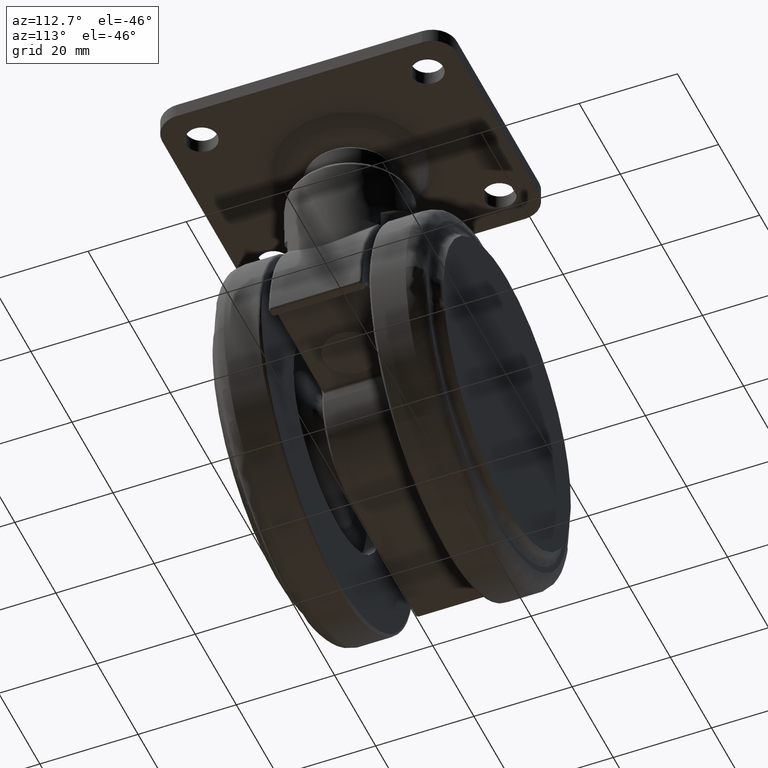
[diagram: clean part render]
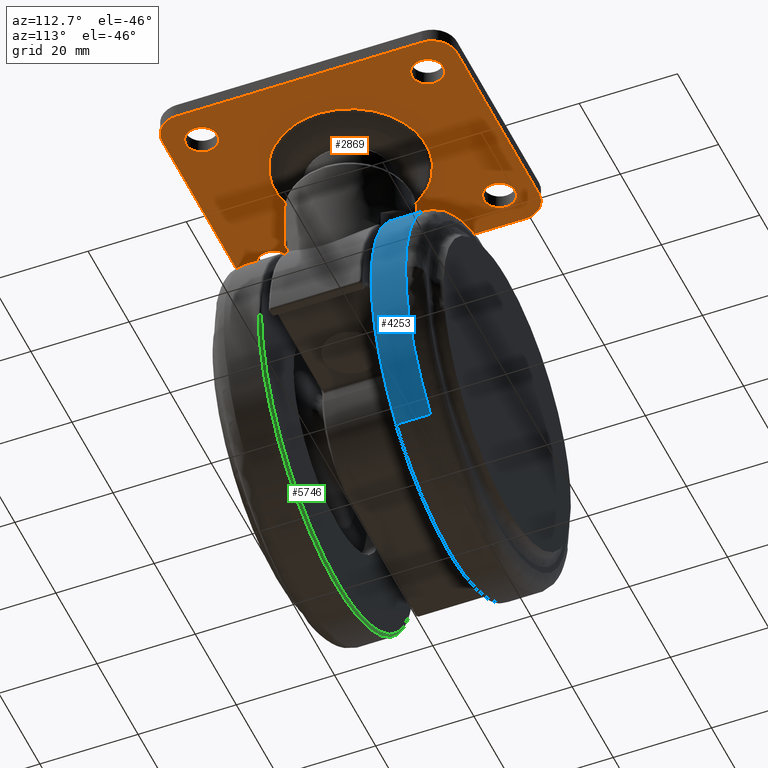
[diagram: same view with three faces highlighted in distinct colors, each labeled with its STEP entity id]
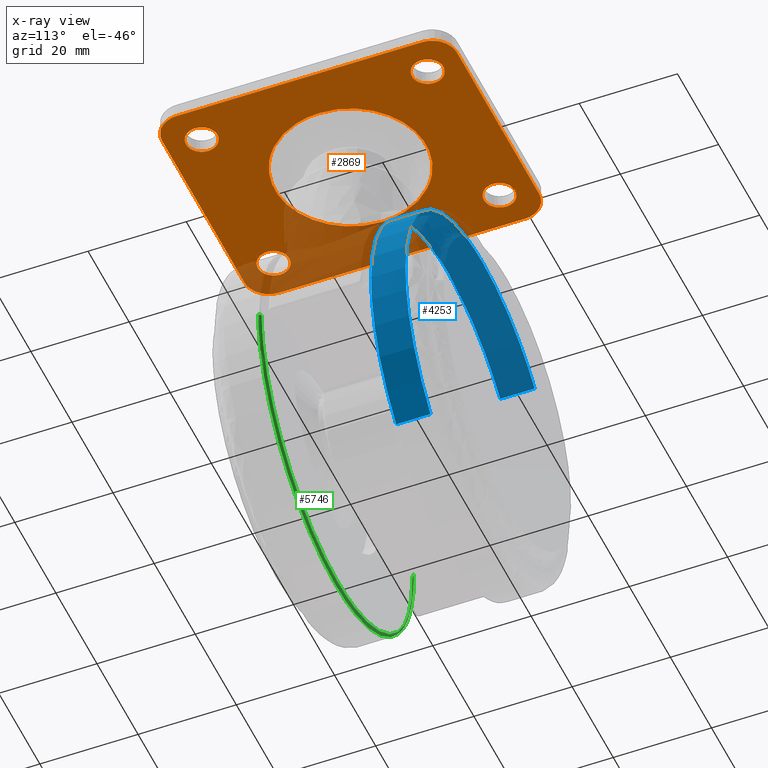
[diagram: x-ray of the same camera — body ghosted, the three highlighted faces saturated]
A machine part, auxiliary view with three faces highlighted in distinct colors.
The next image is the same camera in x-ray (body ghosted, the three faces saturated) — at least one of them is partly hidden behind the body in this view.
Their STEP definitions:

[orange] entity #2869 — the highlighted face is a freeform B-spline surface patch.
#1590=CARTESIAN_POINT('',(14.300000000000001,23.0,11.000000000000121));
#1591=VERTEX_POINT('',#1590);
#1592=CARTESIAN_POINT('',(17.248930893584848,19.809864532060761,11.000000000000121));
#1593=VERTEX_POINT('',#1592);
#1594=CARTESIAN_POINT('',(14.300000000000001,23.0,11.000000000000121));
#1595=CARTESIAN_POINT('',(14.300000000000002,20.041950426773770,11.000000000000121));
#1596=CARTESIAN_POINT('',(17.248930893584848,19.809864532060761,11.000000000000117));
#1604=(BOUNDED_CURVE()B_SPLINE_CURVE(2,(#1594,#1595,#1596),.UNSPECIFIED.,.F.,.U.)B_SPLINE_CURVE_WITH_KNOTS((3,3),(0.0,0.236331300628143),.UNSPECIFIED.)CURVE()GEOMETRIC_REPRESENTATION_ITEM()RATIONAL_B_SPLINE_CURVE((1.0,0.723120658610614,0.969723356162166))REPRESENTATION_ITEM(''));
#1605=EDGE_CURVE('',#1591,#1593,#1604,.T.);
#1607=CARTESIAN_POINT('',(17.751069106415152,26.190135467939239,11.000000000000121));
#1608=VERTEX_POINT('',#1607);
#1609=CARTESIAN_POINT('',(17.751069106415137,26.190135467939236,11.000000000000121));
#1610=CARTESIAN_POINT('',(17.625728342467767,26.200000000000003,11.000000000000117));
#1611=CARTESIAN_POINT('',(17.500000000000000,26.199999999999999,11.000000000000121));
#1612=CARTESIAN_POINT('',(14.299999999999999,26.200000000000006,11.000000000000119));
#1613=CARTESIAN_POINT('',(14.300000000000001,23.0,11.000000000000121));
#1621=(BOUNDED_CURVE()B_SPLINE_CURVE(2,(#1609,#1610,#1611,#1612,#1613),.UNSPECIFIED.,.F.,.U.)B_SPLINE_CURVE_WITH_KNOTS((3,2,3),(0.736331300628143,0.750000000000000,1.0),.UNSPECIFIED.)CURVE()GEOMETRIC_REPRESENTATION_ITEM()RATIONAL_B_SPLINE_CURVE((0.969723356162167,0.983986122575934,1.0,0.707106781186548,1.0))REPRESENTATION_ITEM(''));
#1622=EDGE_CURVE('',#1608,#1591,#1621,.T.);
#1689=CARTESIAN_POINT('',(20.699999999999999,23.0,11.000000000000121));
#1690=VERTEX_POINT('',#1689);
#1691=CARTESIAN_POINT('',(17.248930893584852,19.809864532060764,11.000000000000119));
#1692=CARTESIAN_POINT('',(17.374271657532233,19.799999999999994,11.000000000000121));
#1693=CARTESIAN_POINT('',(17.500000000000000,19.800000000000001,11.000000000000121));
#1694=CARTESIAN_POINT('',(20.700000000000006,19.799999999999997,11.000000000000119));
#1695=CARTESIAN_POINT('',(20.699999999999999,23.0,11.000000000000121));
#1703=(BOUNDED_CURVE()B_SPLINE_CURVE(2,(#1691,#1692,#1693,#1694,#1695),.UNSPECIFIED.,.F.,.U.)B_SPLINE_CURVE_WITH_KNOTS((3,2,3),(0.236331300628143,0.250000000000000,0.500000000000000),.UNSPECIFIED.)CURVE()GEOMETRIC_REPRESENTATION_ITEM()RATIONAL_B_SPLINE_CURVE((0.969723356162166,0.983986122575934,1.0,0.707106781186548,1.0))REPRESENTATION_ITEM(''));
#1704=EDGE_CURVE('',#1593,#1690,#1703,.T.);
#1738=CARTESIAN_POINT('',(20.699999999999999,23.0,11.000000000000121));
#1739=CARTESIAN_POINT('',(20.700000000000003,25.958049573226234,11.000000000000119));
#1740=CARTESIAN_POINT('',(17.751069106415148,26.190135467939243,11.000000000000117));
#1748=(BOUNDED_CURVE()B_SPLINE_CURVE(2,(#1738,#1739,#1740),.UNSPECIFIED.,.F.,.U.)B_SPLINE_CURVE_WITH_KNOTS((3,3),(0.500000000000000,0.736331300628143),.UNSPECIFIED.)CURVE()GEOMETRIC_REPRESENTATION_ITEM()RATIONAL_B_SPLINE_CURVE((1.0,0.723120658610614,0.969723356162166))REPRESENTATION_ITEM(''));
#1749=EDGE_CURVE('',#1690,#1608,#1748,.T.);
#1772=CARTESIAN_POINT('',(-20.699999999999999,23.0,11.000000000000121));
#1773=VERTEX_POINT('',#1772);
#1774=CARTESIAN_POINT('',(-17.751069106415152,19.809864532060761,11.000000000000121));
#1775=VERTEX_POINT('',#1774);
#1776=CARTESIAN_POINT('',(-20.699999999999999,23.0,11.000000000000121));
#1777=CARTESIAN_POINT('',(-20.700000000000006,20.041950426773770,11.000000000000119));
#1778=CARTESIAN_POINT('',(-17.751069106415144,19.809864532060754,11.000000000000114));
#1786=(BOUNDED_CURVE()B_SPLINE_CURVE(2,(#1776,#1777,#1778),.UNSPECIFIED.,.F.,.U.)B_SPLINE_CURVE_WITH_KNOTS((3,3),(0.0,0.236331300628143),.UNSPECIFIED.)CURVE()GEOMETRIC_REPRESENTATION_ITEM()RATIONAL_B_SPLINE_CURVE((1.0,0.723120658610614,0.969723356162166))REPRESENTATION_ITEM(''));
#1787=EDGE_CURVE('',#1773,#1775,#1786,.T.);
#1789=CARTESIAN_POINT('',(-17.248930893584848,26.190135467939239,11.000000000000121));
#1790=VERTEX_POINT('',#1789);
#1791=CARTESIAN_POINT('',(-17.248930893584848,26.190135467939243,11.000000000000117));
#1792=CARTESIAN_POINT('',(-17.374271657532233,26.200000000000010,11.000000000000121));
#1793=CARTESIAN_POINT('',(-17.500000000000000,26.199999999999999,11.000000000000121));
#1794=CARTESIAN_POINT('',(-20.700000000000006,26.200000000000006,11.000000000000119));
#1795=CARTESIAN_POINT('',(-20.699999999999999,23.0,11.000000000000121));
#1803=(BOUNDED_CURVE()B_SPLINE_CURVE(2,(#1791,#1792,#1793,#1794,#1795),.UNSPECIFIED.,.F.,.U.)B_SPLINE_CURVE_WITH_KNOTS((3,2,3),(0.736331300628143,0.750000000000000,1.0),.UNSPECIFIED.)CURVE()GEOMETRIC_REPRESENTATION_ITEM()RATIONAL_B_SPLINE_CURVE((0.969723356162166,0.983986122575934,1.0,0.707106781186548,1.0))REPRESENTATION_ITEM(''));
#1804=EDGE_CURVE('',#1790,#1773,#1803,.T.);
#1871=CARTESIAN_POINT('',(-14.300000000000001,23.0,11.000000000000121));
#1872=VERTEX_POINT('',#1871);
#1873=CARTESIAN_POINT('',(-17.751069106415144,19.809864532060754,11.000000000000114));
#1874=CARTESIAN_POINT('',(-17.625728342467756,19.800000000000001,11.000000000000119));
#1875=CARTESIAN_POINT('',(-17.500000000000000,19.800000000000001,11.000000000000121));
#1876=CARTESIAN_POINT('',(-14.299999999999999,19.799999999999997,11.000000000000119));
#1877=CARTESIAN_POINT('',(-14.300000000000001,23.0,11.000000000000121));
#1885=(BOUNDED_CURVE()B_SPLINE_CURVE(2,(#1873,#1874,#1875,#1876,#1877),.UNSPECIFIED.,.F.,.U.)B_SPLINE_CURVE_WITH_KNOTS((3,2,3),(0.236331300628143,0.250000000000000,0.500000000000000),.UNSPECIFIED.)CURVE()GEOMETRIC_REPRESENTATION_ITEM()RATIONAL_B_SPLINE_CURVE((0.969723356162166,0.983986122575934,1.0,0.707106781186548,1.0))REPRESENTATION_ITEM(''));
#1886=EDGE_CURVE('',#1775,#1872,#1885,.T.);
#1920=CARTESIAN_POINT('',(-14.300000000000001,23.0,11.000000000000121));
#1921=CARTESIAN_POINT('',(-14.300000000000006,25.958049573226244,11.000000000000121));
#1922=CARTESIAN_POINT('',(-17.248930893584848,26.190135467939236,11.000000000000121));
#1930=(BOUNDED_CURVE()B_SPLINE_CURVE(2,(#1920,#1921,#1922),.UNSPECIFIED.,.F.,.U.)B_SPLINE_CURVE_WITH_KNOTS((3,3),(0.500000000000000,0.736331300628143),.UNSPECIFIED.)CURVE()GEOMETRIC_REPRESENTATION_ITEM()RATIONAL_B_SPLINE_CURVE((1.0,0.723120658610614,0.969723356162167))REPRESENTATION_ITEM(''));
#1931=EDGE_CURVE('',#1872,#1790,#1930,.T.);
#1954=CARTESIAN_POINT('',(-20.699999999999999,-23.0,11.000000000000121));
#1955=VERTEX_POINT('',#1954);
#1956=CARTESIAN_POINT('',(-17.751069106415152,-26.190135467939239,11.000000000000121));
#1957=VERTEX_POINT('',#1956);
#1958=CARTESIAN_POINT('',(-20.699999999999999,-23.0,11.000000000000121));
#1959=CARTESIAN_POINT('',(-20.699999999999999,-25.958049573226234,11.000000000000121));
#1960=CARTESIAN_POINT('',(-17.751069106415152,-26.190135467939246,11.000000000000121));
#1968=(BOUNDED_CURVE()B_SPLINE_CURVE(2,(#1958,#1959,#1960),.UNSPECIFIED.,.F.,.U.)B_SPLINE_CURVE_WITH_KNOTS((3,3),(0.0,0.236331300628143),.UNSPECIFIED.)CURVE()GEOMETRIC_REPRESENTATION_ITEM()RATIONAL_B_SPLINE_CURVE((1.0,0.723120658610614,0.969723356162167))REPRESENTATION_ITEM(''));
#1969=EDGE_CURVE('',#1955,#1957,#1968,.T.);
#1971=CARTESIAN_POINT('',(-17.248930893584848,-19.809864532060761,11.000000000000121));
#1972=VERTEX_POINT('',#1971);
#1973=CARTESIAN_POINT('',(-17.248930893584856,-19.809864532060754,11.000000000000114));
#1974=CARTESIAN_POINT('',(-17.374271657532240,-19.799999999999990,11.000000000000119));
#1975=CARTESIAN_POINT('',(-17.500000000000000,-19.800000000000001,11.000000000000121));
#1976=CARTESIAN_POINT('',(-20.700000000000006,-19.799999999999997,11.000000000000119));
#1977=CARTESIAN_POINT('',(-20.699999999999999,-23.0,11.000000000000121));
#1985=(BOUNDED_CURVE()B_SPLINE_CURVE(2,(#1973,#1974,#1975,#1976,#1977),.UNSPECIFIED.,.F.,.U.)B_SPLINE_CURVE_WITH_KNOTS((3,2,3),(0.736331300628143,0.750000000000000,1.0),.UNSPECIFIED.)CURVE()GEOMETRIC_REPRESENTATION_ITEM()RATIONAL_B_SPLINE_CURVE((0.969723356162166,0.983986122575934,1.0,0.707106781186548,1.0))REPRESENTATION_ITEM(''));
#1986=EDGE_CURVE('',#1972,#1955,#1985,.T.);
#2053=CARTESIAN_POINT('',(-14.300000000000001,-23.0,11.000000000000121));
#2054=VERTEX_POINT('',#2053);
#2055=CARTESIAN_POINT('',(-17.751069106415148,-26.190135467939246,11.000000000000117));
#2056=CARTESIAN_POINT('',(-17.625728342467760,-26.200000000000006,11.000000000000121));
#2057=CARTESIAN_POINT('',(-17.500000000000000,-26.199999999999999,11.000000000000121));
#2058=CARTESIAN_POINT('',(-14.299999999999999,-26.200000000000006,11.000000000000119));
#2059=CARTESIAN_POINT('',(-14.300000000000001,-23.0,11.000000000000121));
#2067=(BOUNDED_CURVE()B_SPLINE_CURVE(2,(#2055,#2056,#2057,#2058,#2059),.UNSPECIFIED.,.F.,.U.)B_SPLINE_CURVE_WITH_KNOTS((3,2,3),(0.236331300628143,0.250000000000000,0.500000000000000),.UNSPECIFIED.)CURVE()GEOMETRIC_REPRESENTATION_ITEM()RATIONAL_B_SPLINE_CURVE((0.969723356162166,0.983986122575934,1.0,0.707106781186548,1.0))REPRESENTATION_ITEM(''));
#2068=EDGE_CURVE('',#1957,#2054,#2067,.T.);
#2102=CARTESIAN_POINT('',(-14.300000000000001,-23.0,11.000000000000121));
#2103=CARTESIAN_POINT('',(-14.300000000000006,-20.041950426773759,11.000000000000121));
#2104=CARTESIAN_POINT('',(-17.248930893584848,-19.809864532060761,11.000000000000121));
#2112=(BOUNDED_CURVE()B_SPLINE_CURVE(2,(#2102,#2103,#2104),.UNSPECIFIED.,.F.,.U.)B_SPLINE_CURVE_WITH_KNOTS((3,3),(0.500000000000000,0.736331300628143),.UNSPECIFIED.)CURVE()GEOMETRIC_REPRESENTATION_ITEM()RATIONAL_B_SPLINE_CURVE((1.0,0.723120658610614,0.969723356162167))REPRESENTATION_ITEM(''));
#2113=EDGE_CURVE('',#2054,#1972,#2112,.T.);
#2136=CARTESIAN_POINT('',(14.300000000000001,-23.0,11.000000000000121));
#2137=VERTEX_POINT('',#2136);
#2138=CARTESIAN_POINT('',(17.248930893584848,-26.190135467939239,11.000000000000121));
#2139=VERTEX_POINT('',#2138);
#2140=CARTESIAN_POINT('',(14.300000000000001,-23.0,11.000000000000121));
#2141=CARTESIAN_POINT('',(14.300000000000002,-25.958049573226237,11.000000000000121));
#2142=CARTESIAN_POINT('',(17.248930893584848,-26.190135467939246,11.000000000000117));
#2150=(BOUNDED_CURVE()B_SPLINE_CURVE(2,(#2140,#2141,#2142),.UNSPECIFIED.,.F.,.U.)B_SPLINE_CURVE_WITH_KNOTS((3,3),(0.0,0.236331300628143),.UNSPECIFIED.)CURVE()GEOMETRIC_REPRESENTATION_ITEM()RATIONAL_B_SPLINE_CURVE((1.0,0.723120658610614,0.969723356162166))REPRESENTATION_ITEM(''));
#2151=EDGE_CURVE('',#2137,#2139,#2150,.T.);
#2153=CARTESIAN_POINT('',(17.751069106415152,-19.809864532060761,11.000000000000121));
#2154=VERTEX_POINT('',#2153);
#2155=CARTESIAN_POINT('',(17.751069106415137,-19.809864532060761,11.000000000000121));
#2156=CARTESIAN_POINT('',(17.625728342467767,-19.799999999999997,11.000000000000117));
#2157=CARTESIAN_POINT('',(17.500000000000000,-19.800000000000001,11.000000000000121));
#2158=CARTESIAN_POINT('',(14.299999999999999,-19.799999999999997,11.000000000000119));
#2159=CARTESIAN_POINT('',(14.300000000000001,-23.0,11.000000000000121));
#2167=(BOUNDED_CURVE()B_SPLINE_CURVE(2,(#2155,#2156,#2157,#2158,#2159),.UNSPECIFIED.,.F.,.U.)B_SPLINE_CURVE_WITH_KNOTS((3,2,3),(0.736331300628143,0.750000000000000,1.0),.UNSPECIFIED.)CURVE()GEOMETRIC_REPRESENTATION_ITEM()RATIONAL_B_SPLINE_CURVE((0.969723356162167,0.983986122575934,1.0,0.707106781186548,1.0))REPRESENTATION_ITEM(''));
#2168=EDGE_CURVE('',#2154,#2137,#2167,.T.);
#2235=CARTESIAN_POINT('',(20.699999999999999,-23.0,11.000000000000121));
#2236=VERTEX_POINT('',#2235);
#2237=CARTESIAN_POINT('',(17.248930893584852,-26.190135467939246,11.000000000000119));
#2238=CARTESIAN_POINT('',(17.374271657532233,-26.200000000000010,11.000000000000121));
#2239=CARTESIAN_POINT('',(17.500000000000000,-26.199999999999999,11.000000000000121));
#2240=CARTESIAN_POINT('',(20.700000000000006,-26.200000000000006,11.000000000000119));
#2241=CARTESIAN_POINT('',(20.699999999999999,-23.0,11.000000000000121));
#2249=(BOUNDED_CURVE()B_SPLINE_CURVE(2,(#2237,#2238,#2239,#2240,#2241),.UNSPECIFIED.,.F.,.U.)B_SPLINE_CURVE_WITH_KNOTS((3,2,3),(0.236331300628143,0.250000000000000,0.500000000000000),.UNSPECIFIED.)CURVE()GEOMETRIC_REPRESENTATION_ITEM()RATIONAL_B_SPLINE_CURVE((0.969723356162166,0.983986122575934,1.0,0.707106781186548,1.0))REPRESENTATION_ITEM(''));
#2250=EDGE_CURVE('',#2139,#2236,#2249,.T.);
#2284=CARTESIAN_POINT('',(20.699999999999999,-23.0,11.000000000000121));
#2285=CARTESIAN_POINT('',(20.700000000000003,-20.041950426773766,11.000000000000119));
#2286=CARTESIAN_POINT('',(17.751069106415148,-19.809864532060761,11.000000000000117));
#2294=(BOUNDED_CURVE()B_SPLINE_CURVE(2,(#2284,#2285,#2286),.UNSPECIFIED.,.F.,.U.)B_SPLINE_CURVE_WITH_KNOTS((3,3),(0.500000000000000,0.736331300628143),.UNSPECIFIED.)CURVE()GEOMETRIC_REPRESENTATION_ITEM()RATIONAL_B_SPLINE_CURVE((1.0,0.723120658610614,0.969723356162166))REPRESENTATION_ITEM(''));
#2295=EDGE_CURVE('',#2236,#2154,#2294,.T.);
#2610=CARTESIAN_POINT('',(10.536720338588690,-11.220467512307669,11.0));
#2611=VERTEX_POINT('',#2610);
#2625=CARTESIAN_POINT('',(-15.392250221572001,0.0,11.0));
#2626=VERTEX_POINT('',#2625);
#2627=CARTESIAN_POINT('',(-15.392250221572001,0.0,11.0));
#2628=CARTESIAN_POINT('',(-15.392250222510715,-15.392250220572379,11.0));
#2629=CARTESIAN_POINT('',(-3.107935E-009,-15.392250218262379,11.0));
#2630=CARTESIAN_POINT('',(6.094222977192210,-15.392250217347788,10.999999999999998));
#2631=CARTESIAN_POINT('',(10.536720338588683,-11.220467512307668,11.0));
#2639=(BOUNDED_CURVE()B_SPLINE_CURVE(2,(#2627,#2628,#2629,#2630,#2631),.UNSPECIFIED.,.F.,.U.)B_SPLINE_CURVE_WITH_KNOTS((3,2,3),(0.0,0.250000000000000,0.370259312843120),.UNSPECIFIED.)CURVE()GEOMETRIC_REPRESENTATION_ITEM()RATIONAL_B_SPLINE_CURVE((1.0,0.707106781186547,1.0,0.859107451076339,0.853764031098879))REPRESENTATION_ITEM(''));
#2640=EDGE_CURVE('',#2626,#2611,#2639,.T.);
#2642=CARTESIAN_POINT('',(-10.536720338588690,11.220467512307669,11.0));
#2643=VERTEX_POINT('',#2642);
#2644=CARTESIAN_POINT('',(-10.536720338588683,11.220467512307668,11.0));
#2645=CARTESIAN_POINT('',(-15.392250219402779,6.660821459689584,11.000000000000002));
#2646=CARTESIAN_POINT('',(-15.392250221572001,0.0,11.0));
#2654=(BOUNDED_CURVE()B_SPLINE_CURVE(2,(#2644,#2645,#2646),.UNSPECIFIED.,.F.,.U.)B_SPLINE_CURVE_WITH_KNOTS((3,3),(0.870259312843120,1.0),.UNSPECIFIED.)CURVE()GEOMETRIC_REPRESENTATION_ITEM()RATIONAL_B_SPLINE_CURVE((0.853764031098879,0.847999330110209,1.0))REPRESENTATION_ITEM(''));
#2655=EDGE_CURVE('',#2643,#2626,#2654,.T.);
#2708=CARTESIAN_POINT('',(15.392250221572001,0.0,11.0));
#2709=VERTEX_POINT('',#2708);
#2710=CARTESIAN_POINT('',(15.392250221572001,0.0,11.0));
#2711=CARTESIAN_POINT('',(15.392250222510715,15.392250220572379,11.0));
#2712=CARTESIAN_POINT('',(3.107935E-009,15.392250218262379,11.0));
#2713=CARTESIAN_POINT('',(-6.094222977192210,15.392250217347788,10.999999999999998));
#2714=CARTESIAN_POINT('',(-10.536720338588683,11.220467512307668,11.0));
#2722=(BOUNDED_CURVE()B_SPLINE_CURVE(2,(#2710,#2711,#2712,#2713,#2714),.UNSPECIFIED.,.F.,.U.)B_SPLINE_CURVE_WITH_KNOTS((3,2,3),(0.500000000000000,0.750000000000000,0.870259312843120),.UNSPECIFIED.)CURVE()GEOMETRIC_REPRESENTATION_ITEM()RATIONAL_B_SPLINE_CURVE((1.0,0.707106781186547,1.0,0.859107451076339,0.853764031098879))REPRESENTATION_ITEM(''));
#2723=EDGE_CURVE('',#2709,#2643,#2722,.T.);
#2725=CARTESIAN_POINT('',(10.536720338588683,-11.220467512307668,11.0));
#2726=CARTESIAN_POINT('',(15.392250219402779,-6.660821459689584,11.000000000000002));
#2727=CARTESIAN_POINT('',(15.392250221572001,0.0,11.0));
#2735=(BOUNDED_CURVE()B_SPLINE_CURVE(2,(#2725,#2726,#2727),.UNSPECIFIED.,.F.,.U.)B_SPLINE_CURVE_WITH_KNOTS((3,3),(0.370259312843120,0.500000000000000),.UNSPECIFIED.)CURVE()GEOMETRIC_REPRESENTATION_ITEM()RATIONAL_B_SPLINE_CURVE((0.853764031098879,0.847999330110209,1.0))REPRESENTATION_ITEM(''));
#2736=EDGE_CURVE('',#2611,#2709,#2735,.T.);
#2742=CARTESIAN_POINT('',(-27.497499903090301,32.996999883708362,11.0));
#2743=CARTESIAN_POINT('',(27.497501244194812,32.996999883708362,11.0));
#2744=CARTESIAN_POINT('',(-27.497499903090301,-32.997001493033771,11.0));
#2745=CARTESIAN_POINT('',(27.497501244194812,-32.997001493033771,11.0));
#2746=B_SPLINE_SURFACE_WITH_KNOTS('',1,1,((#2742,#2744),(#2743,#2745)),.UNSPECIFIED.,.F.,.F.,.U.,(2,2),(2,2),(0.0,54.995001147285109),(0.0,65.994001376742119),.UNSPECIFIED.);
#2747=CARTESIAN_POINT('',(19.999999999995602,30.0,11.000000000000121));
#2748=VERTEX_POINT('',#2747);
#2749=CARTESIAN_POINT('',(-20.000000000004551,30.0,11.000000000000121));
#2750=VERTEX_POINT('',#2749);
#2751=CARTESIAN_POINT('',(19.999999999995602,30.0,11.000000000000121));
#2752=CARTESIAN_POINT('',(-20.000000000004551,30.0,11.000000000000121));
#2753=QUASI_UNIFORM_CURVE('',1,(#2751,#2752),.UNSPECIFIED.,.F.,.U.);
#2754=EDGE_CURVE('',#2748,#2750,#2753,.T.);
#2755=ORIENTED_EDGE('',*,*,#2754,.F.);
#2756=CARTESIAN_POINT('',(25.0,25.0,11.000000000000121));
#2757=VERTEX_POINT('',#2756);
#2758=CARTESIAN_POINT('',(25.0,25.0,11.000000000000121));
#2759=CARTESIAN_POINT('',(25.000054297040268,25.347701902753769,11.000000000000110));
#2760=CARTESIAN_POINT('',(24.937852029380601,25.940810957086828,11.000000000000130));
#2761=CARTESIAN_POINT('',(24.652356190380580,26.925728310016069,11.000000000000110));
#2762=CARTESIAN_POINT('',(24.191081380207560,27.801577987489519,11.000000000000149));
#2763=CARTESIAN_POINT('',(23.578245178429931,28.520713269300419,11.000000000000011));
#2764=CARTESIAN_POINT('',(22.880057498252022,29.123085343981309,11.000000000000350));
#2765=CARTESIAN_POINT('',(22.061070607611551,29.600434981846359,10.999999999999829));
#2766=CARTESIAN_POINT('',(21.022626561508570,29.929305427629590,11.000000000000270));
#2767=CARTESIAN_POINT('',(20.347701171029680,30.000052832102771,11.000000000000030));
#2768=CARTESIAN_POINT('',(19.999999999995602,30.0,11.000000000000121));
#2769=B_SPLINE_CURVE_WITH_KNOTS('',3,(#2758,#2759,#2760,#2761,#2762,#2763,#2764,#2765,#2766,#2767,#2768),.UNSPECIFIED.,.F.,.U.,(4,1,1,1,1,1,1,1,4),(0.000000118015302,1.043102015149914,1.779429006807546,3.068001900550261,3.988339525617881,4.601946734339276,5.829162510191752,6.810932949346734,7.854030914389531),.UNSPECIFIED.);
#2770=EDGE_CURVE('',#2757,#2748,#2769,.T.);
#2771=ORIENTED_EDGE('',*,*,#2770,.F.);
#2772=CARTESIAN_POINT('',(25.0,-25.0,11.000000000000121));
#2773=VERTEX_POINT('',#2772);
#2774=CARTESIAN_POINT('',(25.0,-25.0,11.000000000000121));
#2775=CARTESIAN_POINT('',(25.0,25.0,11.000000000000121));
#2776=QUASI_UNIFORM_CURVE('',1,(#2774,#2775),.UNSPECIFIED.,.F.,.U.);
#2777=EDGE_CURVE('',#2773,#2757,#2776,.T.);
#2778=ORIENTED_EDGE('',*,*,#2777,.F.);
#2779=CARTESIAN_POINT('',(20.0,-30.0,11.000000000000121));
#2780=VERTEX_POINT('',#2779);
#2781=CARTESIAN_POINT('',(20.0,-30.0,11.000000000000121));
#2782=CARTESIAN_POINT('',(25.0,-30.000000000000004,11.000000000000119));
#2783=CARTESIAN_POINT('',(25.0,-25.0,11.000000000000121));
#2791=(BOUNDED_CURVE()B_SPLINE_CURVE(2,(#2781,#2782,#2783),.UNSPECIFIED.,.F.,.U.)CURVE()GEOMETRIC_REPRESENTATION_ITEM()QUASI_UNIFORM_CURVE()RATIONAL_B_SPLINE_CURVE((1.0,0.707106781186548,1.0))REPRESENTATION_ITEM(''));
#2792=EDGE_CURVE('',#2780,#2773,#2791,.T.);
#2793=ORIENTED_EDGE('',*,*,#2792,.F.);
#2794=CARTESIAN_POINT('',(-19.999999999998501,-30.0,11.000000000000121));
#2795=VERTEX_POINT('',#2794);
#2796=CARTESIAN_POINT('',(-19.999999999998501,-30.0,11.000000000000121));
#2797=CARTESIAN_POINT('',(20.0,-30.0,11.000000000000121));
#2798=QUASI_UNIFORM_CURVE('',1,(#2796,#2797),.UNSPECIFIED.,.F.,.U.);
#2799=EDGE_CURVE('',#2795,#2780,#2798,.T.);
#2800=ORIENTED_EDGE('',*,*,#2799,.F.);
#2801=CARTESIAN_POINT('',(-25.0,-25.0,11.000000000000121));
#2802=VERTEX_POINT('',#2801);
#2803=CARTESIAN_POINT('',(-25.0,-25.0,11.000000000000121));
#2804=CARTESIAN_POINT('',(-25.000036184096210,-25.347694726301100,11.000000000000110));
#2805=CARTESIAN_POINT('',(-24.918677873988820,-26.124934805747060,11.000000000000140));
#2806=CARTESIAN_POINT('',(-24.577274358764480,-27.097902965102030,11.000000000000121));
#2807=CARTESIAN_POINT('',(-24.018421819435080,-28.030255463186190,11.000000000000121));
#2808=CARTESIAN_POINT('',(-23.409521362356902,-28.702056395881080,11.000000000000121));
#2809=CARTESIAN_POINT('',(-22.585855211041199,-29.312912187375190,11.000000000000130));
#2810=CARTESIAN_POINT('',(-21.883135267666031,-29.655885263116250,11.000000000000220));
#2811=CARTESIAN_POINT('',(-20.981697789802080,-29.929309558001979,10.999999999999959));
#2812=CARTESIAN_POINT('',(-20.409071968625121,-30.000115125633169,11.000000000000320));
#2813=CARTESIAN_POINT('',(-19.999999999998501,-30.0,11.000000000000121));
#2814=B_SPLINE_CURVE_WITH_KNOTS('',3,(#2803,#2804,#2805,#2806,#2807,#2808,#2809,#2810,#2811,#2812,#2813),.UNSPECIFIED.,.F.,.U.,(4,1,1,1,1,1,1,1,4),(0.000000118009251,1.043102015144293,2.331669811278768,3.068001900544294,4.295171281249321,5.031481817513306,6.135966956464534,6.626849521619485,7.854030914386748),.UNSPECIFIED.);
#2815=EDGE_CURVE('',#2802,#2795,#2814,.T.);
#2816=ORIENTED_EDGE('',*,*,#2815,.F.);
#2817=CARTESIAN_POINT('',(-25.0,24.999999999996898,11.000000000000121));
#2818=VERTEX_POINT('',#2817);
#2819=CARTESIAN_POINT('',(-25.0,24.999999999996898,11.000000000000121));
#2820=CARTESIAN_POINT('',(-25.0,-25.0,11.000000000000121));
#2821=QUASI_UNIFORM_CURVE('',1,(#2819,#2820),.UNSPECIFIED.,.F.,.U.);
#2822=EDGE_CURVE('',#2818,#2802,#2821,.T.);
#2823=ORIENTED_EDGE('',*,*,#2822,.F.);
#2824=CARTESIAN_POINT('',(-20.000000000004540,30.0,11.000000000000121));
#2825=CARTESIAN_POINT('',(-25.0,29.999999999995456,11.000000000000121));
#2826=CARTESIAN_POINT('',(-25.0,25.0,11.000000000000121));
#2834=(BOUNDED_CURVE()B_SPLINE_CURVE(2,(#2824,#2825,#2826),.UNSPECIFIED.,.F.,.U.)CURVE()GEOMETRIC_REPRESENTATION_ITEM()QUASI_UNIFORM_CURVE()RATIONAL_B_SPLINE_CURVE((1.0,0.707106781186869,1.0))REPRESENTATION_ITEM(''));
#2835=EDGE_CURVE('',#2750,#2818,#2834,.T.);
#2836=ORIENTED_EDGE('',*,*,#2835,.F.);
#2837=EDGE_LOOP('',(#2755,#2771,#2778,#2793,#2800,#2816,#2823,#2836));
#2838=FACE_OUTER_BOUND('',#2837,.T.);
#2839=ORIENTED_EDGE('',*,*,#2723,.T.);
#2840=ORIENTED_EDGE('',*,*,#2655,.T.);
#2841=ORIENTED_EDGE('',*,*,#2640,.T.);
#2842=ORIENTED_EDGE('',*,*,#2736,.T.);
#2843=EDGE_LOOP('',(#2839,#2840,#2841,#2842));
#2844=FACE_BOUND('',#2843,.T.);
#2845=ORIENTED_EDGE('',*,*,#2295,.T.);
#2846=ORIENTED_EDGE('',*,*,#2168,.T.);
#2847=ORIENTED_EDGE('',*,*,#2151,.T.);
#2848=ORIENTED_EDGE('',*,*,#2250,.T.);
#2849=EDGE_LOOP('',(#2845,#2846,#2847,#2848));
#2850=FACE_BOUND('',#2849,.T.);
#2851=ORIENTED_EDGE('',*,*,#2113,.T.);
#2852=ORIENTED_EDGE('',*,*,#1986,.T.);
#2853=ORIENTED_EDGE('',*,*,#1969,.T.);
#2854=ORIENTED_EDGE('',*,*,#2068,.T.);
#2855=EDGE_LOOP('',(#2851,#2852,#2853,#2854));
#2856=FACE_BOUND('',#2855,.T.);
#2857=ORIENTED_EDGE('',*,*,#1931,.T.);
#2858=ORIENTED_EDGE('',*,*,#1804,.T.);
#2859=ORIENTED_EDGE('',*,*,#1787,.T.);
#2860=ORIENTED_EDGE('',*,*,#1886,.T.);
#2861=EDGE_LOOP('',(#2857,#2858,#2859,#2860));
#2862=FACE_BOUND('',#2861,.T.);
#2863=ORIENTED_EDGE('',*,*,#1749,.T.);
#2864=ORIENTED_EDGE('',*,*,#1622,.T.);
#2865=ORIENTED_EDGE('',*,*,#1605,.T.);
#2866=ORIENTED_EDGE('',*,*,#1704,.T.);
#2867=EDGE_LOOP('',(#2863,#2864,#2865,#2866));
#2868=FACE_BOUND('',#2867,.T.);
#2869=ADVANCED_FACE('',(#2838,#2844,#2850,#2856,#2862,#2868),#2746,.T.);

[blue] entity #4253 — the highlighted face is a freeform B-spline surface patch.
#4012=CARTESIAN_POINT('',(17.497039157643091,11.499999999192640,-40.028773504374129));
#4013=VERTEX_POINT('',#4012);
#4027=CARTESIAN_POINT('',(-20.0,11.500000000000000,-3.000000000000003));
#4028=VERTEX_POINT('',#4027);
#4029=CARTESIAN_POINT('',(17.497039157643098,11.499999999192632,-40.028773504374129));
#4030=CARTESIAN_POINT('',(17.031697371524132,11.499999999596318,-3.000000000000009));
#4031=CARTESIAN_POINT('',(-20.0,11.500000000000000,-3.000000000000003));
#4039=(BOUNDED_CURVE()B_SPLINE_CURVE(2,(#4029,#4030,#4031),.UNSPECIFIED.,.F.,.U.)B_SPLINE_CURVE_WITH_KNOTS((3,3),(0.252215704078272,0.500000000000000),.UNSPECIFIED.)CURVE()GEOMETRIC_REPRESENTATION_ITEM()RATIONAL_B_SPLINE_CURVE((0.994854295644011,0.709702639984241,1.0))REPRESENTATION_ITEM(''));
#4040=EDGE_CURVE('',#4013,#4028,#4039,.T.);
#4042=CARTESIAN_POINT('',(-45.334631068007262,11.499999999624650,-12.852098295748471));
#4043=VERTEX_POINT('',#4042);
#4044=CARTESIAN_POINT('',(-20.0,11.500000000000000,-3.000000000000003));
#4045=CARTESIAN_POINT('',(-34.582951103523762,11.499999999844976,-3.000000000000005));
#4046=CARTESIAN_POINT('',(-45.334631068007305,11.499999999624626,-12.852098295748403));
#4054=(BOUNDED_CURVE()B_SPLINE_CURVE(2,(#4044,#4045,#4046),.UNSPECIFIED.,.F.,.U.)B_SPLINE_CURVE_WITH_KNOTS((3,3),(0.500000000000000,0.618415199705921),.UNSPECIFIED.)CURVE()GEOMETRIC_REPRESENTATION_ITEM()RATIONAL_B_SPLINE_CURVE((1.0,0.861267964006781,0.853959781995529))REPRESENTATION_ITEM(''));
#4055=EDGE_CURVE('',#4028,#4043,#4054,.T.);
#4136=CARTESIAN_POINT('',(5.334631068007293,11.499999999624659,-68.147901704251524));
#4137=VERTEX_POINT('',#4136);
#4151=CARTESIAN_POINT('',(5.334631068007348,11.499999999624627,-68.147901704251595));
#4152=CARTESIAN_POINT('',(17.499999999999993,11.499999999375303,-57.000396298774902));
#4153=CARTESIAN_POINT('',(17.500000000000000,11.499999999197680,-40.500000000000007));
#4154=CARTESIAN_POINT('',(17.499999999999993,11.499999999195143,-40.264377450304067));
#4155=CARTESIAN_POINT('',(17.497039157643098,11.499999999192632,-40.028773504374129));
#4163=(BOUNDED_CURVE()B_SPLINE_CURVE(2,(#4151,#4152,#4153,#4154,#4155),.UNSPECIFIED.,.F.,.U.)B_SPLINE_CURVE_WITH_KNOTS((3,2,3),(0.118415199705921,0.250000000000000,0.252215704078272),.UNSPECIFIED.)CURVE()GEOMETRIC_REPRESENTATION_ITEM()RATIONAL_B_SPLINE_CURVE((0.853959781995529,0.845838817179767,1.0,0.997404141202307,0.994854295644011))REPRESENTATION_ITEM(''));
#4164=EDGE_CURVE('',#4137,#4013,#4163,.T.);
#4171=CARTESIAN_POINT('',(-45.334632785587232,11.324999999149981,-12.852099869620361));
#4172=CARTESIAN_POINT('',(-17.686732655207592,11.324999999149934,12.482532915966889));
#4173=CARTESIAN_POINT('',(7.647900130379654,11.324999999149901,-15.165367214412750));
#4174=CARTESIAN_POINT('',(32.982532915966914,11.324999999149858,-42.813267344792379));
#4175=CARTESIAN_POINT('',(5.334632785587271,11.324999999149901,-68.147900130379639));
#4176=CARTESIAN_POINT('',(-45.334632785587232,18.679375000941778,-12.852099869620361));
#4177=CARTESIAN_POINT('',(-17.686732655207592,18.679375000941743,12.482532915966889));
#4178=CARTESIAN_POINT('',(7.647900130379664,18.679375000941700,-15.165367214412750));
#4179=CARTESIAN_POINT('',(32.982532915966914,18.679375000941658,-42.813267344792379));
#4180=CARTESIAN_POINT('',(5.334632785587282,18.679375000941700,-68.147900130379639));
#4188=(BOUNDED_SURFACE()B_SPLINE_SURFACE(2,1,((#4171,#4176),(#4172,#4177),(#4173,#4178),(#4174,#4179),(#4175,#4180)),.UNSPECIFIED.,.F.,.F.,.U.)B_SPLINE_SURFACE_WITH_KNOTS((3,2,3),(2,2),(0.0,62.132034355964237,124.264068711928500),(0.0,7.354375001791800),.UNSPECIFIED.)GEOMETRIC_REPRESENTATION_ITEM()RATIONAL_B_SPLINE_SURFACE(((1.0,1.0),(0.707106781186548,0.707106781186548),(1.0,1.0),(0.707106781186548,0.707106781186548),(1.0,1.0)))REPRESENTATION_ITEM('')SURFACE());
#4189=ORIENTED_EDGE('',*,*,#4055,.F.);
#4190=ORIENTED_EDGE('',*,*,#4040,.F.);
#4191=ORIENTED_EDGE('',*,*,#4164,.F.);
#4192=CARTESIAN_POINT('',(5.334631088700697,18.500000000417511,-68.147901685289526));
#4193=VERTEX_POINT('',#4192);
#4194=CARTESIAN_POINT('',(5.334631068007293,11.499999999624659,-68.147901704251524));
#4195=CARTESIAN_POINT('',(5.334631088700697,18.500000000417511,-68.147901685289526));
#4196=QUASI_UNIFORM_CURVE('',1,(#4194,#4195),.UNSPECIFIED.,.F.,.U.);
#4197=EDGE_CURVE('',#4137,#4193,#4196,.T.);
#4198=ORIENTED_EDGE('',*,*,#4197,.T.);
#4199=CARTESIAN_POINT('',(17.497039157643101,18.500000000897980,-40.028773504374058));
#4200=VERTEX_POINT('',#4199);
#4201=CARTESIAN_POINT('',(5.334631088700744,18.500000000417511,-68.147901685289568));
#4202=CARTESIAN_POINT('',(17.499999999999996,18.500000000694822,-57.000396282024184));
#4203=CARTESIAN_POINT('',(17.500000000000000,18.500000000892371,-40.500000000000007));
#4204=CARTESIAN_POINT('',(17.500000000000004,18.500000000895199,-40.264377450304025));
#4205=CARTESIAN_POINT('',(17.497039157643094,18.500000000897977,-40.028773504374058));
#4213=(BOUNDED_CURVE()B_SPLINE_CURVE(2,(#4201,#4202,#4203,#4204,#4205),.UNSPECIFIED.,.F.,.U.)B_SPLINE_CURVE_WITH_KNOTS((3,2,3),(0.118415199818909,0.250000000000000,0.252215704078273),.UNSPECIFIED.)CURVE()GEOMETRIC_REPRESENTATION_ITEM()RATIONAL_B_SPLINE_CURVE((0.853959781981583,0.845838817312141,1.0,0.997404141202306,0.994854295644010))REPRESENTATION_ITEM(''));
#4214=EDGE_CURVE('',#4193,#4200,#4213,.T.);
#4215=ORIENTED_EDGE('',*,*,#4214,.T.);
#4216=CARTESIAN_POINT('',(-20.0,18.500000000000000,-3.000000000000003));
#4217=VERTEX_POINT('',#4216);
#4218=CARTESIAN_POINT('',(17.497039157643094,18.500000000897977,-40.028773504374058));
#4219=CARTESIAN_POINT('',(17.031697371524064,18.500000000448988,-3.000000000000006));
#4220=CARTESIAN_POINT('',(-20.0,18.500000000000000,-3.000000000000003));
#4228=(BOUNDED_CURVE()B_SPLINE_CURVE(2,(#4218,#4219,#4220),.UNSPECIFIED.,.F.,.U.)B_SPLINE_CURVE_WITH_KNOTS((3,3),(0.252215704078273,0.500000000000000),.UNSPECIFIED.)CURVE()GEOMETRIC_REPRESENTATION_ITEM()RATIONAL_B_SPLINE_CURVE((0.994854295644010,0.709702639984241,1.0))REPRESENTATION_ITEM(''));
#4229=EDGE_CURVE('',#4200,#4217,#4228,.T.);
#4230=ORIENTED_EDGE('',*,*,#4229,.T.);
#4231=CARTESIAN_POINT('',(-45.334631088700661,18.500000000417511,-12.852098314710480));
#4232=VERTEX_POINT('',#4231);
#4233=CARTESIAN_POINT('',(-20.0,18.500000000000000,-3.000000000000003));
#4234=CARTESIAN_POINT('',(-34.582951119679713,18.500000000172427,-3.000000000000003));
#4235=CARTESIAN_POINT('',(-45.334631088700718,18.500000000417508,-12.852098314710419));
#4243=(BOUNDED_CURVE()B_SPLINE_CURVE(2,(#4233,#4234,#4235),.UNSPECIFIED.,.F.,.U.)B_SPLINE_CURVE_WITH_KNOTS((3,3),(0.500000000000000,0.618415199818909),.UNSPECIFIED.)CURVE()GEOMETRIC_REPRESENTATION_ITEM()RATIONAL_B_SPLINE_CURVE((1.0,0.861267963874407,0.853959781981583))REPRESENTATION_ITEM(''));
#4244=EDGE_CURVE('',#4217,#4232,#4243,.T.);
#4245=ORIENTED_EDGE('',*,*,#4244,.T.);
#4246=CARTESIAN_POINT('',(-45.334631068007262,11.499999999624650,-12.852098295748471));
#4247=CARTESIAN_POINT('',(-45.334631088700661,18.500000000417511,-12.852098314710480));
#4248=QUASI_UNIFORM_CURVE('',1,(#4246,#4247),.UNSPECIFIED.,.F.,.U.);
#4249=EDGE_CURVE('',#4043,#4232,#4248,.T.);
#4250=ORIENTED_EDGE('',*,*,#4249,.F.);
#4251=EDGE_LOOP('',(#4189,#4190,#4191,#4198,#4215,#4230,#4245,#4250));
#4252=FACE_OUTER_BOUND('',#4251,.T.);
#4253=ADVANCED_FACE('',(#4252),#4188,.T.);

[green] entity #5746 — the highlighted face is a freeform B-spline surface patch.
#5484=CARTESIAN_POINT('',(-56.997078641075049,-11.0,-40.035056524239039));
#5485=VERTEX_POINT('',#5484);
#5486=CARTESIAN_POINT('',(-20.0,-11.0,-77.500000000000000));
#5487=VERTEX_POINT('',#5486);
#5488=CARTESIAN_POINT('',(-56.997078641075042,-11.000000000000002,-40.035056524239039));
#5489=CARTESIAN_POINT('',(-57.000000005516775,-10.999999999999998,-40.267519084227061));
#5490=CARTESIAN_POINT('',(-57.000000005499381,-11.0,-40.499999999930893));
#5491=CARTESIAN_POINT('',(-57.000000002732399,-10.999999999999998,-77.499999999965667));
#5492=CARTESIAN_POINT('',(-20.0,-11.0,-77.500000000000000));
#5500=(BOUNDED_CURVE()B_SPLINE_CURVE(2,(#5488,#5489,#5490,#5491,#5492),.UNSPECIFIED.,.F.,.U.)B_SPLINE_CURVE_WITH_KNOTS((3,2,3),(0.747784295921693,0.750000000000000,1.0),.UNSPECIFIED.)CURVE()GEOMETRIC_REPRESENTATION_ITEM()RATIONAL_B_SPLINE_CURVE((0.994854295643932,0.997404141202267,1.0,0.707106781186548,1.0))REPRESENTATION_ITEM(''));
#5501=EDGE_CURVE('',#5485,#5487,#5500,.T.);
#5518=CARTESIAN_POINT('',(16.997078641075060,-11.0,-40.964943475760961));
#5519=VERTEX_POINT('',#5518);
#5535=CARTESIAN_POINT('',(-20.0,-11.0,-77.500000000000000));
#5536=CARTESIAN_POINT('',(16.537941409330333,-11.0,-77.500000000034760));
#5537=CARTESIAN_POINT('',(16.997078641075056,-11.000000000000002,-40.964943475760968));
#5545=(BOUNDED_CURVE()B_SPLINE_CURVE(2,(#5535,#5536,#5537),.UNSPECIFIED.,.F.,.U.)B_SPLINE_CURVE_WITH_KNOTS((3,3),(0.0,0.247784295921693),.UNSPECIFIED.)CURVE()GEOMETRIC_REPRESENTATION_ITEM()RATIONAL_B_SPLINE_CURVE((1.0,0.709702639984281,0.994854295643932))REPRESENTATION_ITEM(''));
#5546=EDGE_CURVE('',#5487,#5519,#5545,.T.);
#5588=CARTESIAN_POINT('',(-57.497039157643087,-11.499999999198010,-40.028773504373923));
#5589=VERTEX_POINT('',#5588);
#5590=CARTESIAN_POINT('',(-56.997078641075056,-11.0,-40.035056524239039));
#5591=CARTESIAN_POINT('',(-57.497039156841112,-11.000000005534398,-40.028773504380482));
#5592=CARTESIAN_POINT('',(-57.497039157643080,-11.499999999198007,-40.028773504373923));
#5600=(BOUNDED_CURVE()B_SPLINE_CURVE(2,(#5590,#5591,#5592),.UNSPECIFIED.,.F.,.U.)B_SPLINE_CURVE_WITH_KNOTS((3,3),(-1.725134631930818,-0.274865358363065),.UNSPECIFIED.)CURVE()GEOMETRIC_REPRESENTATION_ITEM()RATIONAL_B_SPLINE_CURVE((0.883342145603073,0.624617226446017,0.883342149066173))REPRESENTATION_ITEM(''));
#5601=EDGE_CURVE('',#5485,#5589,#5600,.T.);
#5633=CARTESIAN_POINT('',(17.497039157643091,-11.499999999198010,-40.971226495626077));
#5634=VERTEX_POINT('',#5633);
#5650=CARTESIAN_POINT('',(16.997078641075067,-11.0,-40.964943475760961));
#5651=CARTESIAN_POINT('',(17.497039156841119,-11.000000005534407,-40.971226495619526));
#5652=CARTESIAN_POINT('',(17.497039157643091,-11.499999999198003,-40.971226495626084));
#5660=(BOUNDED_CURVE()B_SPLINE_CURVE(2,(#5650,#5651,#5652),.UNSPECIFIED.,.F.,.U.)B_SPLINE_CURVE_WITH_KNOTS((3,3),(-1.725134631930802,-0.274865358363065),.UNSPECIFIED.)CURVE()GEOMETRIC_REPRESENTATION_ITEM()RATIONAL_B_SPLINE_CURVE((0.883342145603067,0.624617226446020,0.883342149066174))REPRESENTATION_ITEM(''));
#5661=EDGE_CURVE('',#5519,#5634,#5660,.T.);
#5666=CARTESIAN_POINT('',(-56.949326737755918,-11.001210317253813,-39.002147743186491));
#5667=CARTESIAN_POINT('',(-56.955781968095842,-11.001210317253813,-39.515811611994373));
#5668=CARTESIAN_POINT('',(-57.426819398804248,-11.001210317253815,-76.997806253522683));
#5669=CARTESIAN_POINT('',(-20.464506572640776,-11.001210317253813,-77.462312826163483));
#5670=CARTESIAN_POINT('',(16.497806253522686,-11.001210317253815,-77.926819398804255));
#5671=CARTESIAN_POINT('',(16.968843684231047,-11.001210317253808,-40.444824757279761));
#5672=CARTESIAN_POINT('',(16.975298914570928,-11.001210317253815,-39.931160888475631));
#5673=CARTESIAN_POINT('',(-57.522617108498459,-10.961231428181808,-38.978907691162789));
#5674=CARTESIAN_POINT('',(-57.529172495504852,-10.961231428181806,-39.500541354708105));
#5675=CARTESIAN_POINT('',(-58.007518346883600,-10.961231428181808,-77.564091020411041));
#5676=CARTESIAN_POINT('',(-20.471713663236283,-10.961231428181808,-78.035804683647299));
#5677=CARTESIAN_POINT('',(17.064091020411031,-10.961231428181808,-78.507518346883572));
#5678=CARTESIAN_POINT('',(17.542436871789704,-10.961231428181808,-40.443968681184522));
#5679=CARTESIAN_POINT('',(17.548992258796073,-10.961231428181810,-39.922335017643036));
#5680=CARTESIAN_POINT('',(-57.482655404630286,-11.534768568620100,-38.980527659200369));
#5681=CARTESIAN_POINT('',(-57.489203810129155,-11.534768568620096,-39.501605781272382));
#5682=CARTESIAN_POINT('',(-57.967040221689103,-11.534768568620096,-77.524617648252118));
#5683=CARTESIAN_POINT('',(-20.471211286718496,-11.534768568620095,-77.995828934970604));
#5684=CARTESIAN_POINT('',(17.024617648252118,-11.534768568620096,-78.467040221689103));
#5685=CARTESIAN_POINT('',(17.502454059812024,-11.534768568620095,-40.444028354713261));
#5686=CARTESIAN_POINT('',(17.509002465310843,-11.534768568620093,-39.922950232645036));
#5694=(BOUNDED_SURFACE()B_SPLINE_SURFACE(2,2,((#5666,#5673,#5680),(#5667,#5674,#5681),(#5668,#5675,#5682),(#5669,#5676,#5683),(#5670,#5677,#5684),(#5671,#5678,#5685),(#5672,#5679,#5686)),.UNSPECIFIED.,.F.,.F.,.U.)B_SPLINE_SURFACE_WITH_KNOTS((3,1,2,1,3),(3,3),(0.0,1.242600580709954,63.372629615764737,125.502658650819500,126.745259231520290),(0.0,0.911364996626759),.UNSPECIFIED.)GEOMETRIC_REPRESENTATION_ITEM()RATIONAL_B_SPLINE_SURFACE(((0.921146729405025,0.604479481452485,0.921146741237659),(0.915813262248011,0.600979527147161,0.915813274012133),(0.643806437242182,0.422481857576905,0.643806445512228),(0.910479795090997,0.597479572841838,0.910479806786608),(0.643806437242182,0.422481857576905,0.643806445512228),(0.915813262247971,0.600979527147135,0.915813274012094),(0.921146729404946,0.604479481452433,0.921146741237580)))REPRESENTATION_ITEM('')SURFACE());
#5695=ORIENTED_EDGE('',*,*,#5546,.T.);
#5696=ORIENTED_EDGE('',*,*,#5661,.T.);
#5697=CARTESIAN_POINT('',(-20.0,-11.500000000000000,-78.0));
#5698=VERTEX_POINT('',#5697);
#5699=CARTESIAN_POINT('',(-20.0,-11.500000000000000,-78.0));
#5700=CARTESIAN_POINT('',(17.031697371523919,-11.499999999599003,-77.999999999999986));
#5701=CARTESIAN_POINT('',(17.497039157643091,-11.499999999198007,-40.971226495626084));
#5709=(BOUNDED_CURVE()B_SPLINE_CURVE(2,(#5699,#5700,#5701),.UNSPECIFIED.,.F.,.U.)B_SPLINE_CURVE_WITH_KNOTS((3,3),(0.0,0.247784295921726),.UNSPECIFIED.)CURVE()GEOMETRIC_REPRESENTATION_ITEM()RATIONAL_B_SPLINE_CURVE((1.0,0.709702639984242,0.994854295644008))REPRESENTATION_ITEM(''));
#5710=EDGE_CURVE('',#5698,#5634,#5709,.T.);
#5711=ORIENTED_EDGE('',*,*,#5710,.F.);
#5712=CARTESIAN_POINT('',(-47.201539324456363,-11.499999999587780,-66.313296154889883));
#5713=VERTEX_POINT('',#5712);
#5714=CARTESIAN_POINT('',(-47.201539324456363,-11.499999999587791,-66.313296154889912));
#5715=CARTESIAN_POINT('',(-36.111271827826513,-11.499999999829869,-78.000000000000014));
#5716=CARTESIAN_POINT('',(-20.0,-11.500000000000000,-78.0));
#5724=(BOUNDED_CURVE()B_SPLINE_CURVE(2,(#5714,#5715,#5716),.UNSPECIFIED.,.F.,.U.)B_SPLINE_CURVE_WITH_KNOTS((3,3),(0.871049524253318,1.0),.UNSPECIFIED.)CURVE()GEOMETRIC_REPRESENTATION_ITEM()RATIONAL_B_SPLINE_CURVE((0.853699661547589,0.848925120364113,1.0))REPRESENTATION_ITEM(''));
#5725=EDGE_CURVE('',#5713,#5698,#5724,.T.);
#5726=ORIENTED_EDGE('',*,*,#5725,.F.);
#5727=CARTESIAN_POINT('',(-57.497039157643087,-11.499999999198009,-40.028773504373916));
#5728=CARTESIAN_POINT('',(-57.499999999999993,-11.499999999200492,-40.264377450303961));
#5729=CARTESIAN_POINT('',(-57.499999999999993,-11.499999999203011,-40.500000000000007));
#5730=CARTESIAN_POINT('',(-57.499999999999993,-11.499999999362997,-55.460982627541291));
#5731=CARTESIAN_POINT('',(-47.201539324456363,-11.499999999587791,-66.313296154889912));
#5739=(BOUNDED_CURVE()B_SPLINE_CURVE(2,(#5727,#5728,#5729,#5730,#5731),.UNSPECIFIED.,.F.,.U.)B_SPLINE_CURVE_WITH_KNOTS((3,2,3),(0.747784295921726,0.750000000000000,0.871049524253318),.UNSPECIFIED.)CURVE()GEOMETRIC_REPRESENTATION_ITEM()RATIONAL_B_SPLINE_CURVE((0.994854295644008,0.997404141202305,1.0,0.858181660822435,0.853699661547589))REPRESENTATION_ITEM(''));
#5740=EDGE_CURVE('',#5589,#5713,#5739,.T.);
#5741=ORIENTED_EDGE('',*,*,#5740,.F.);
#5742=ORIENTED_EDGE('',*,*,#5601,.F.);
#5743=ORIENTED_EDGE('',*,*,#5501,.T.);
#5744=EDGE_LOOP('',(#5695,#5696,#5711,#5726,#5741,#5742,#5743));
#5745=FACE_OUTER_BOUND('',#5744,.T.);
#5746=ADVANCED_FACE('',(#5745),#5694,.T.);